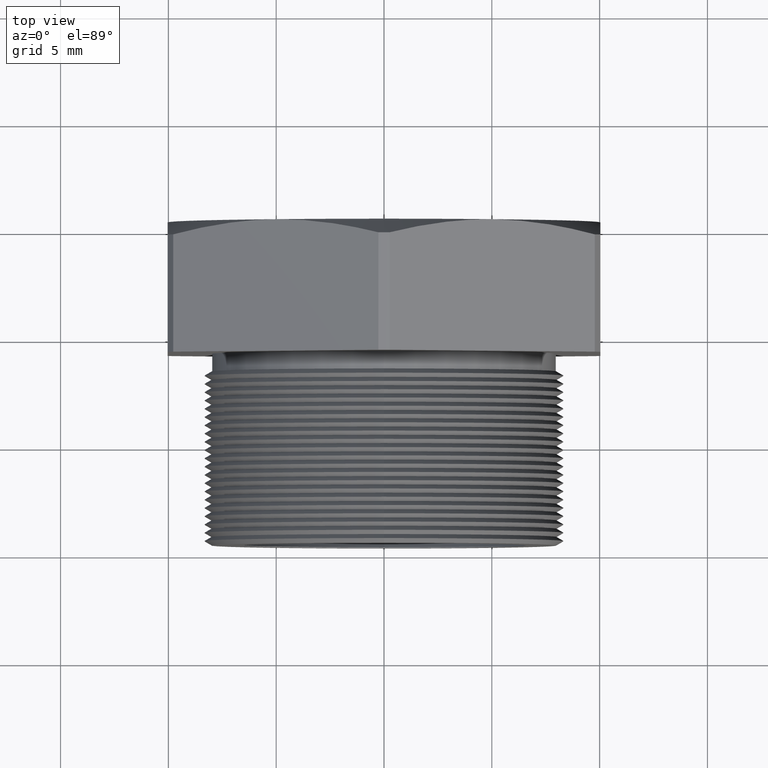
[diagram: clean part render]
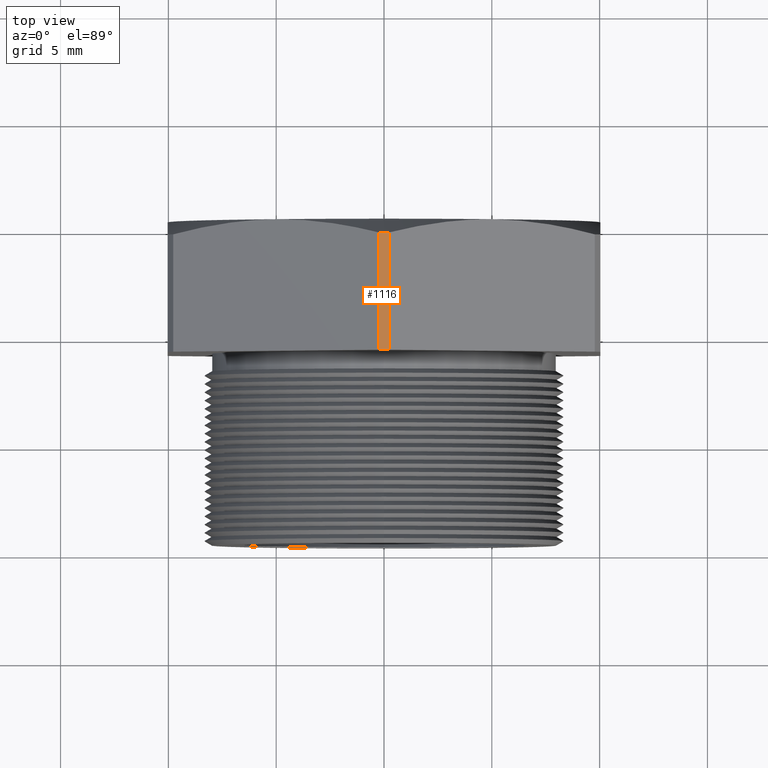
[diagram: same view with one face highlighted and labeled with its STEP entity id]
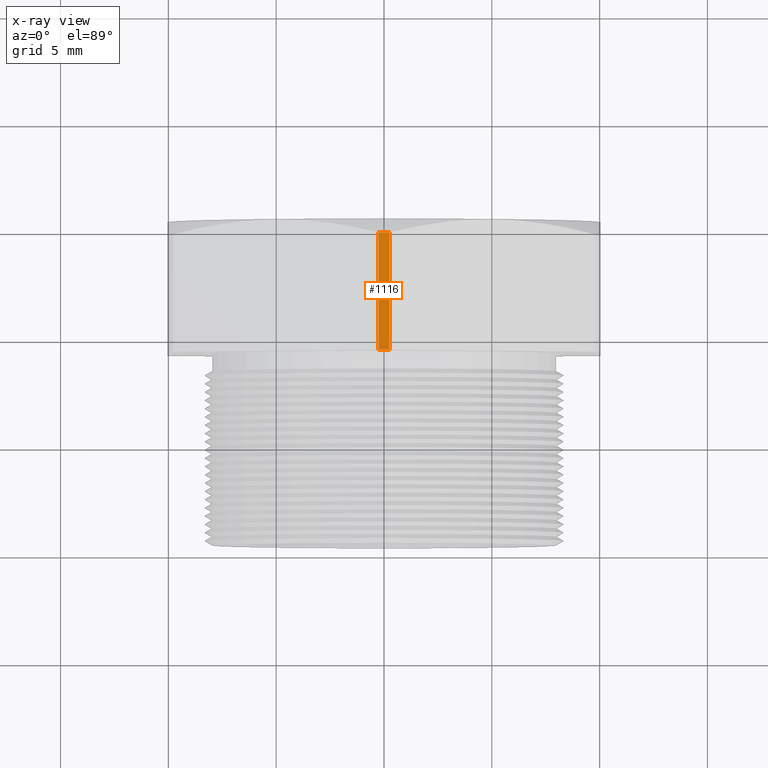
[diagram: x-ray of the same camera — body ghosted, the highlighted face saturated]
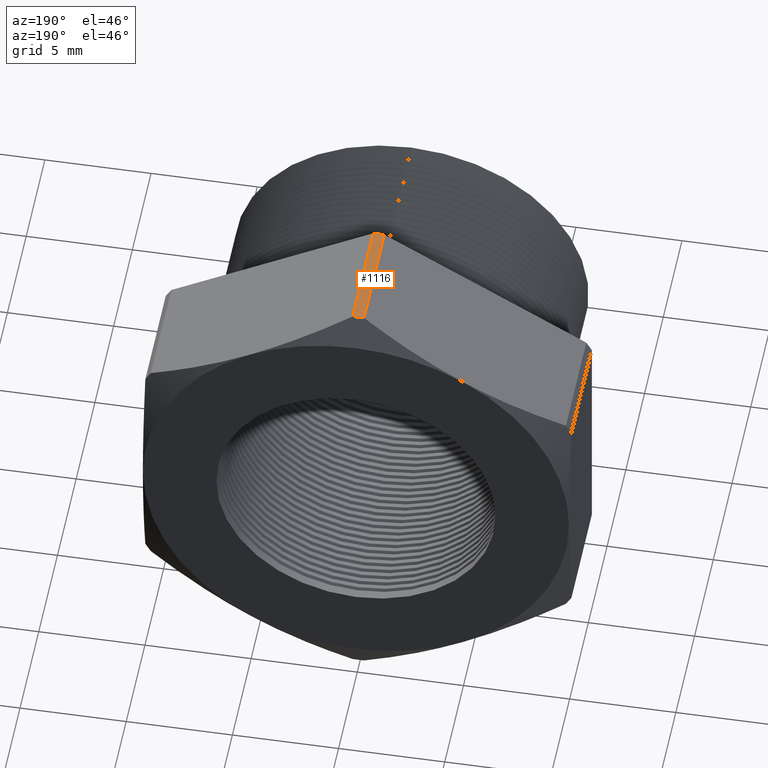
[diagram: same view with one face highlighted and labeled with its STEP entity id]
A machine part, top view. The second image highlights one B-rep face of the part: STEP entity #1116.
The next image is the same camera in x-ray: the body ghosted, the highlighted face saturated — about 0% of this face is hidden behind the body in this view.
A second angle (auxiliary view) of the same face is appended — the face is thin or edge-on in the first view.
In plain terms, the highlighted cylindrical surface (partial cylindrical patch) has radius 11.4376 mm, axis along (-0, -1, -0).
Its self-contained STEP definition (entity closure, byte-faithful):
#1066 = ORIENTED_EDGE ( 'NONE', *, *, #1135, .T. ) ;
#1110 = ORIENTED_EDGE ( 'NONE', *, *, #2014, .T. ) ;
#1111 = EDGE_LOOP ( 'NONE', ( #1114, #1110, #1066, #1134, #1125 ) ) ;
#1112 = VERTEX_POINT ( 'NONE', #4386 ) ;
#1113 = EDGE_CURVE ( 'NONE', #1112, #2015, #4441, .T. ) ;
#1114 = ORIENTED_EDGE ( 'NONE', *, *, #1113, .T. ) ;
#1116 = ADVANCED_FACE ( 'NONE', ( #4432 ), #4431, .T. ) ;
#1125 = ORIENTED_EDGE ( 'NONE', *, *, #1130, .F. ) ;
#1127 = VERTEX_POINT ( 'NONE', #4420 ) ;
#1130 = EDGE_CURVE ( 'NONE', #1112, #1127, #4463, .T. ) ;
#1132 = VERTEX_POINT ( 'NONE', #4452 ) ;
#1133 = EDGE_CURVE ( 'NONE', #1132, #1127, #4451, .T. ) ;
#1134 = ORIENTED_EDGE ( 'NONE', *, *, #1133, .T. ) ;
#1135 = EDGE_CURVE ( 'NONE', #2012, #1132, #4447, .T. ) ;
#2012 = VERTEX_POINT ( 'NONE', #6158 ) ;
#2014 = EDGE_CURVE ( 'NONE', #2015, #2012, #6157, .T. ) ;
#2015 = VERTEX_POINT ( 'NONE', #6152 ) ;
#4386 = CARTESIAN_POINT ( 'NONE',  ( 0.01026000026703746700, 0.1675548905829479500, 0.4501830987437449600 ) ) ;
#4420 = CARTESIAN_POINT ( 'NONE',  ( -0.01026000026703719400, 0.1675548905829479500, 0.4501830987437449000 ) ) ;
#4426 = DIRECTION ( 'NONE',  ( 0.0000000000000000000, 0.0000000000000000000, -1.000000000000000000 ) ) ;
#4427 = DIRECTION ( 'NONE',  ( -0.0000000000000000000, -1.000000000000000000, -0.0000000000000000000 ) ) ;
#4428 = CARTESIAN_POINT ( 'NONE',  ( 0.0000000000000000000, 0.0000000000000000000, 0.0000000000000000000 ) ) ;
#4429 = AXIS2_PLACEMENT_3D ( 'NONE', #4428, #4427, #4426 ) ;
#4431 = CYLINDRICAL_SURFACE ( 'NONE', #4429, 0.4502999999999999800 ) ;
#4432 = FACE_OUTER_BOUND ( 'NONE', #1111, .T. ) ;
#4438 = DIRECTION ( 'NONE',  ( 0.0000000000000000000, 1.000000000000000000, 0.0000000000000000000 ) ) ;
#4439 = VECTOR ( 'NONE', #4438, 39.37007874015748100 ) ;
#4440 = CARTESIAN_POINT ( 'NONE',  ( 0.01026000026703756900, 0.0000000000000000000, 0.4501830987437449000 ) ) ;
#4441 = LINE ( 'NONE', #4440, #4439 ) ;
#4443 = DIRECTION ( 'NONE',  ( 0.0000000000000000000, 0.0000000000000000000, -1.000000000000000000 ) ) ;
#4444 = DIRECTION ( 'NONE',  ( 0.0000000000000000000, -1.000000000000000000, 0.0000000000000000000 ) ) ;
#4445 = CARTESIAN_POINT ( 'NONE',  ( 0.0000000000000000000, 0.3817680770869766300, 0.0000000000000000000 ) ) ;
#4446 = AXIS2_PLACEMENT_3D ( 'NONE', #4445, #4444, #4443 ) ;
#4447 = CIRCLE ( 'NONE', #4446, 0.4502999999999999800 ) ;
#4448 = DIRECTION ( 'NONE',  ( -0.0000000000000000000, -1.000000000000000000, -0.0000000000000000000 ) ) ;
#4449 = VECTOR ( 'NONE', #4448, 39.37007874015748100 ) ;
#4450 = CARTESIAN_POINT ( 'NONE',  ( -0.01026000026703719400, 0.0000000000000000000, 0.4501830987437449000 ) ) ;
#4451 = LINE ( 'NONE', #4450, #4449 ) ;
#4452 = CARTESIAN_POINT ( 'NONE',  ( -0.01026000026703719400, 0.3817680770869766300, 0.4501830987437449000 ) ) ;
#4459 = DIRECTION ( 'NONE',  ( 0.0000000000000000000, 0.0000000000000000000, -1.000000000000000000 ) ) ;
#4460 = DIRECTION ( 'NONE',  ( -0.0000000000000000000, -1.000000000000000000, -0.0000000000000000000 ) ) ;
#4461 = CARTESIAN_POINT ( 'NONE',  ( 0.0000000000000000000, 0.1675548905829479500, 0.0000000000000000000 ) ) ;
#4462 = AXIS2_PLACEMENT_3D ( 'NONE', #4461, #4460, #4459 ) ;
#4463 = CIRCLE ( 'NONE', #4462, 0.4502999999999999800 ) ;
#6152 = CARTESIAN_POINT ( 'NONE',  ( 0.01026000026703751200, 0.3817680770869766900, 0.4501830987437447900 ) ) ;
#6153 = DIRECTION ( 'NONE',  ( 0.0000000000000000000, 0.0000000000000000000, -1.000000000000000000 ) ) ;
#6154 = DIRECTION ( 'NONE',  ( 0.0000000000000000000, -1.000000000000000000, 0.0000000000000000000 ) ) ;
#6155 = CARTESIAN_POINT ( 'NONE',  ( 0.0000000000000000000, 0.3817680770869766300, 0.0000000000000000000 ) ) ;
#6156 = AXIS2_PLACEMENT_3D ( 'NONE', #6155, #6154, #6153 ) ;
#6157 = CIRCLE ( 'NONE', #6156, 0.4502999999999999800 ) ;
#6158 = CARTESIAN_POINT ( 'NONE',  ( 0.0000000000000000000, 0.3817680770869766300, 0.4502999999999999800 ) ) ;